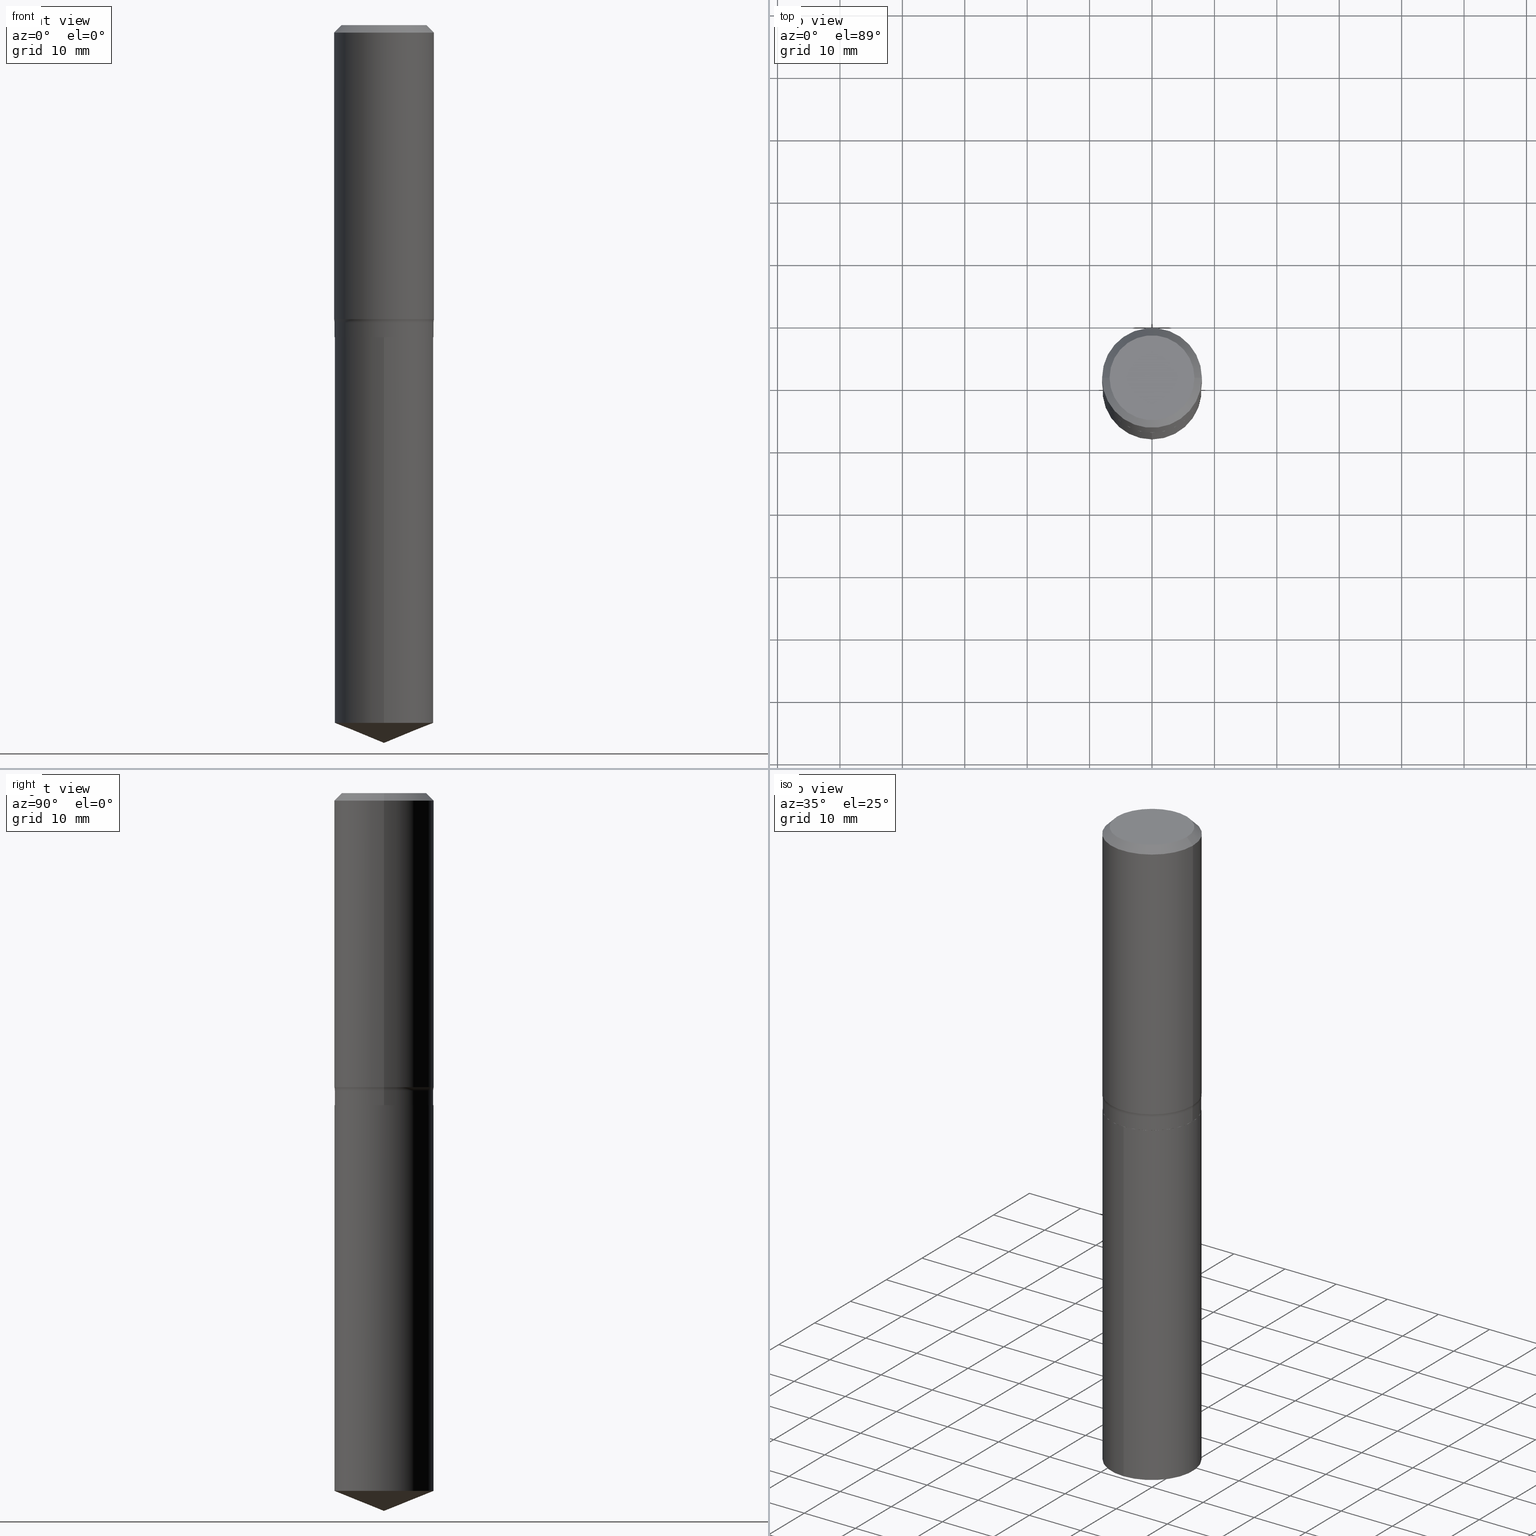
[diagram: canonical four-view strip — front | top / right | iso, engineering-drawing reading convention]
A machine part, canonical four-view strip (front | top / right | iso — engineering-drawing reading convention). The complete STEP part file that produces these views, byte-faithful:
ISO-10303-21;
HEADER;
FILE_DESCRIPTION (( 'STEP AP203' ),
    '1' );
FILE_NAME ('56832.STEP',
    '2024-04-19T14:14:56',
    ( '' ),
    ( '' ),
    'SwSTEP 2.0',
    'SolidWorks 2023',
    '' );
FILE_SCHEMA (( 'CONFIG_CONTROL_DESIGN' ));
ENDSEC;

DATA;
#1 = EDGE_CURVE ( 'NONE', #180, #492, #428, .T. ) ;
#2 = CARTESIAN_POINT ( 'NONE',  ( 4.537088519197371614E-29, -6.477759952362211419E-15, -1.855304188596502035 ) ) ;
#3 = AXIS2_PLACEMENT_3D ( 'NONE', #123, #337, #330 ) ;
#4 = DIMENSIONAL_EXPONENTS ( 1.000000000000000000, 0.000000000000000000, 0.000000000000000000, 0.000000000000000000, 0.000000000000000000, 0.000000000000000000, 0.000000000000000000 ) ;
#5 = DIRECTION ( 'NONE',  ( -2.445468806185136597E-29, 3.491481338843145583E-15, 1.000000000000000000 ) ) ;
#6 = DIRECTION ( 'NONE',  ( 1.000000000000000000, -6.982962677686267499E-15, 0.000000000000000000 ) ) ;
#7 = ADVANCED_FACE ( 'NONE', ( #111 ), #473, .T. ) ;
#8 = ORIENTED_EDGE ( 'NONE', *, *, #460, .F. ) ;
#9 = DIRECTION ( 'NONE',  ( 1.000000000000000000, -6.982962677686268288E-15, 4.883557194083113462E-29 ) ) ;
#10 = ORIENTED_EDGE ( 'NONE', *, *, #335, .T. ) ;
#11 = CONICAL_SURFACE ( 'NONE', #303, 0.3120000000000001106, 0.7853981633974482790 ) ;
#12 = DIRECTION ( 'NONE',  ( -2.445468806185136597E-29, 3.491481338843145583E-15, 1.000000000000000000 ) ) ;
#13 = LINE ( 'NONE', #278, #404 ) ;
#14 = EDGE_LOOP ( 'NONE', ( #275, #375, #218, #128 ) ) ;
#15 = DIRECTION ( 'NONE',  ( 1.000000000000000000, -6.982962677686267499E-15, 4.876236838442819371E-29 ) ) ;
#16 = CARTESIAN_POINT ( 'NONE',  ( 4.813905344975440153E-29, -6.872981015512730130E-15, -1.968499999999999472 ) ) ;
#17 = ORIENTED_EDGE ( 'NONE', *, *, #476, .T. ) ;
#18 = EDGE_CURVE ( 'NONE', #492, #207, #146, .T. ) ;
#19 = LINE ( 'NONE', #435, #423 ) ;
#20 = ORIENTED_EDGE ( 'NONE', *, *, #432, .F. ) ;
#21 = PLANE ( 'NONE',  #203 ) ;
#22 = TOROIDAL_SURFACE ( 'NONE', #36, 0.3905000000000000693, 0.07800000000000002764 ) ;
#23 = ORGANIZATION ( 'UNSPECIFIED', 'UNSPECIFIED', '' ) ;
#24 = ORIENTED_EDGE ( 'NONE', *, *, #185, .T. ) ;
#25 = DIRECTION ( 'NONE',  ( 1.000000000000000000, -6.982962677686265133E-15, 0.000000000000000000 ) ) ;
#26 = DIRECTION ( 'NONE',  ( 1.000000000000000000, -6.982962677686264344E-15, 0.000000000000000000 ) ) ;
#27 = APPROVAL_STATUS ( 'not_yet_approved' ) ;
#28 = DATE_AND_TIME ( #225, #439 ) ;
#29 = CIRCLE ( 'NONE', #270, 0.3125000000000000000 ) ;
#30 = APPROVAL_DATE_TIME ( #447, #145 ) ;
#31 = VERTEX_POINT ( 'NONE', #336 ) ;
#32 = DATE_TIME_ROLE ( 'creation_date' ) ;
#33 = DIRECTION ( 'NONE',  ( -0.7071067811865453523, 2.468850131082234184E-15, -0.7071067811865496822 ) ) ;
#34 = CC_DESIGN_PERSON_AND_ORGANIZATION_ASSIGNMENT ( #313, #152, ( #489 ) ) ;
#35 = LINE ( 'NONE', #351, #261 ) ;
#36 = AXIS2_PLACEMENT_3D ( 'NONE', #287, #401, #9 ) ;
#37 = CARTESIAN_POINT ( 'NONE',  ( 0.3125000000000000000, -2.182175836776958347E-15, 1.523805242436230075E-29 ) ) ;
#38 = EDGE_CURVE ( 'NONE', #477, #122, #236, .T. ) ;
#39 = DIRECTION ( 'NONE',  ( -6.982962677686266711E-15, -1.000000000000000000, 3.491481338843145583E-15 ) ) ;
#40 = DIRECTION ( 'NONE',  ( -6.982962677686265133E-15, -1.000000000000000000, 3.496765431890256920E-15 ) ) ;
#41 = APPROVAL_PERSON_ORGANIZATION ( #107, #145, #227 ) ;
#42 = CIRCLE ( 'NONE', #271, 0.3125000000000000000 ) ;
#43 = PLANE ( 'NONE',  #3 ) ;
#44 = CARTESIAN_POINT ( 'NONE',  ( 0.3120000000000001106, -9.051665370950845469E-15, -1.968499999999999472 ) ) ;
#45 = ORIENTED_EDGE ( 'NONE', *, *, #415, .T. ) ;
#46 = CARTESIAN_POINT ( 'NONE',  ( 4.813905344975440153E-29, -6.872981015512730130E-15, -1.968499999999999472 ) ) ;
#47 = ORIENTED_EDGE ( 'NONE', *, *, #1, .F. ) ;
#48 = CARTESIAN_POINT ( 'NONE',  ( -0.3905000000000000693, -3.770810682786052509E-15, -1.874699999999999589 ) ) ;
#49 = DIRECTION ( 'NONE',  ( -2.445316251726159407E-29, 3.491699805511261497E-15, 1.000000000000000000 ) ) ;
#50 = AXIS2_PLACEMENT_3D ( 'NONE', #452, #106, #273 ) ;
#51 = VERTEX_POINT ( 'NONE', #479 ) ;
#52 = APPLICATION_PROTOCOL_DEFINITION ( 'international standard', 'config_control_design', 1994, #414 ) ;
#53 = PRODUCT_DEFINITION ( 'UNKNOWN', '', #58, #239 ) ;
#54 = DIRECTION ( 'NONE',  ( -0.7071067811865474617, 7.493145998870352582E-15, 0.7071067811865474617 ) ) ;
#55 = FACE_OUTER_BOUND ( 'NONE', #323, .T. ) ;
#56 = DIRECTION ( 'NONE',  ( 2.438088387897960049E-29, -3.491481338843145188E-15, -1.000000000000000000 ) ) ;
#57 = CIRCLE ( 'NONE', #65, 0.3125000000000000000 ) ;
#58 = PRODUCT_DEFINITION_FORMATION_WITH_SPECIFIED_SOURCE ( 'ANY', '', #269, .NOT_KNOWN. ) ;
#59 = DIRECTION ( 'NONE',  ( 1.000000000000000000, -6.982962677686264344E-15, 0.000000000000000000 ) ) ;
#60 = ADVANCED_FACE ( 'NONE', ( #55 ), #136, .T. ) ;
#61 = DATE_AND_TIME ( #309, #229 ) ;
#62 = SECURITY_CLASSIFICATION_LEVEL ( 'unclassified' ) ;
#63 = DIRECTION ( 'NONE',  ( -6.982962677686265133E-15, -1.000000000000000000, 3.496765431890256920E-15 ) ) ;
#64 = DATE_TIME_ROLE ( 'classification_date' ) ;
#65 = AXIS2_PLACEMENT_3D ( 'NONE', #79, #49, #40 ) ;
#66 = ORIENTED_EDGE ( 'NONE', *, *, #432, .T. ) ;
#67 = CIRCLE ( 'NONE', #253, 0.3125000000000000000 ) ;
#68 = ADVANCED_FACE ( 'NONE', ( #151 ), #262, .T. ) ;
#69 = PERSON_AND_ORGANIZATION ( #291, #23 ) ;
#70 = DIRECTION ( 'NONE',  ( -2.445316251726159407E-29, 3.491699805511261497E-15, 1.000000000000000000 ) ) ;
#71 = CARTESIAN_POINT ( 'NONE',  ( -0.3149500000000000077, 2.034337788186991592E-15, -0.04724250000000029120 ) ) ;
#72 = CARTESIAN_POINT ( 'NONE',  ( 4.584520370955274765E-29, -6.545480065929243438E-15, -1.874699999999999589 ) ) ;
#73 = CARTESIAN_POINT ( 'NONE',  ( 4.813905344975440153E-29, -6.872981015512730130E-15, -1.968499999999999472 ) ) ;
#74 = DIRECTION ( 'NONE',  ( -1.000000000000000000, 6.982962677686266711E-15, 0.000000000000000000 ) ) ;
#75 = DIRECTION ( 'NONE',  ( 1.000000000000000000, -6.982962677686268288E-15, 4.883557194083113462E-29 ) ) ;
#76 = LINE ( 'NONE', #77, #156 ) ;
#77 = CARTESIAN_POINT ( 'NONE',  ( 0.3149500000000001743, -2.199284095337290660E-15, 1.535751875536930690E-29 ) ) ;
#78 = FACE_OUTER_BOUND ( 'NONE', #189, .T. ) ;
#79 = CARTESIAN_POINT ( 'NONE',  ( 4.813905344975440153E-29, -6.872981015512730130E-15, -1.968499999999999472 ) ) ;
#80 = VECTOR ( 'NONE', #135, 39.37007874015748143 ) ;
#81 = LOCAL_TIME ( 10, 14, 56.00000000000000000, #412 ) ;
#82 = EDGE_CURVE ( 'NONE', #51, #246, #487, .T. ) ;
#83 = DIRECTION ( 'NONE',  ( 1.000000000000000000, -6.982962677686255667E-15, 0.000000000000000000 ) ) ;
#84 = VERTEX_POINT ( 'NONE', #192 ) ;
#85 = CARTESIAN_POINT ( 'NONE',  ( 2.220446049250420760E-15, 0.3124999999999931166, -1.968500000000000583 ) ) ;
#86 = ORIENTED_EDGE ( 'NONE', *, *, #307, .T. ) ;
#87 = DIRECTION ( 'NONE',  ( -2.445468806185136597E-29, 3.491481338843145583E-15, 1.000000000000000000 ) ) ;
#88 = ADVANCED_FACE ( 'NONE', ( #348 ), #311, .T. ) ;
#89 = AXIS2_PLACEMENT_3D ( 'NONE', #204, #395, #462 ) ;
#90 = AXIS2_PLACEMENT_3D ( 'NONE', #340, #141, #144 ) ;
#91 = CARTESIAN_POINT ( 'NONE',  ( 0.3120000000000001106, -9.051665370950845469E-15, -1.968499999999999472 ) ) ;
#92 = APPROVAL ( #345, 'UNSPECIFIED' ) ;
#93 = ORIENTED_EDGE ( 'NONE', *, *, #265, .F. ) ;
#94 = DIRECTION ( 'NONE',  ( -2.445468806185136597E-29, 3.491481338843145583E-15, 1.000000000000000000 ) ) ;
#95 = CARTESIAN_POINT ( 'NONE',  ( 1.107201973483394939E-28, -1.580815993616041291E-14, -4.527599999999999625 ) ) ;
#96 = EDGE_CURVE ( 'NONE', #477, #84, #35, .T. ) ;
#97 = CARTESIAN_POINT ( 'NONE',  ( 0.3149500000000002853, -8.677044047699501290E-15, -1.855304188596502035 ) ) ;
#98 = DIRECTION ( 'NONE',  ( 1.000000000000000000, -6.982962677686266711E-15, 4.876176775795936353E-29 ) ) ;
#99 = DIRECTION ( 'NONE',  ( 1.000000000000000000, -6.982962677686267499E-15, 4.876236838442819371E-29 ) ) ;
#100 = CIRCLE ( 'NONE', #391, 0.07800000000000002764 ) ;
#101 = DATE_AND_TIME ( #231, #81 ) ;
#102 = DIRECTION ( 'NONE',  ( -6.982962677686265922E-15, -1.000000000000000000, 3.498761904101801525E-15 ) ) ;
#103 = EDGE_CURVE ( 'NONE', #180, #31, #13, .T. ) ;
#104 = APPROVAL_DATE_TIME ( #28, #312 ) ;
#105 = AXIS2_PLACEMENT_3D ( 'NONE', #383, #70, #102 ) ;
#106 = DIRECTION ( 'NONE',  ( -2.445316251726159407E-29, 3.491699805511261497E-15, 1.000000000000000000 ) ) ;
#107 = PERSON_AND_ORGANIZATION ( #291, #23 ) ;
#108 = DIRECTION ( 'NONE',  ( -6.982962677686265133E-15, -1.000000000000000000, 3.496765431890256920E-15 ) ) ;
#109 = DIRECTION ( 'NONE',  ( 6.588037525764796813E-15, 0.9271838545667898668, 0.3746065934159055755 ) ) ;
#110 = EDGE_CURVE ( 'NONE', #255, #158, #57, .T. ) ;
#111 = FACE_OUTER_BOUND ( 'NONE', #162, .T. ) ;
#112 = FACE_OUTER_BOUND ( 'NONE', #14, .T. ) ;
#113 = CLOSED_SHELL ( 'NONE', ( #281, #220, #238, #385, #301, #60, #118, #277, #7, #488, #389, #328 ) ) ;
#114 = AXIS2_PLACEMENT_3D ( 'NONE', #48, #446, #372 ) ;
#115 = CYLINDRICAL_SURFACE ( 'NONE', #89, 0.3149500000000001743 ) ;
#116 = DIRECTION ( 'NONE',  ( -2.445468806185136597E-29, 3.491481338843145583E-15, 1.000000000000000000 ) ) ;
#117 = FACE_OUTER_BOUND ( 'NONE', #143, .T. ) ;
#118 = ADVANCED_FACE ( 'NONE', ( #155 ), #22, .F. ) ;
#119 = VERTEX_POINT ( 'NONE', #120 ) ;
#120 = CARTESIAN_POINT ( 'NONE',  ( 0.3149500000000000077, -2.364230402487588149E-15, -0.04724250000000029120 ) ) ;
#121 = CLOSED_SHELL ( 'NONE', ( #88, #352, #360, #68, #199 ) ) ;
#122 = VERTEX_POINT ( 'NONE', #394 ) ;
#123 = CARTESIAN_POINT ( 'NONE',  ( 4.813905344975440153E-29, -6.872981015512730130E-15, -1.968499999999999472 ) ) ;
#124 = DIRECTION ( 'NONE',  ( 2.445316251726158847E-29, -3.491699805511261891E-15, -1.000000000000000000 ) ) ;
#125 = EDGE_LOOP ( 'NONE', ( #232, #382, #471, #441 ) ) ;
#126 = ORIENTED_EDGE ( 'NONE', *, *, #256, .T. ) ;
#127 = CARTESIAN_POINT ( 'NONE',  ( 0.000000000000000000, 0.000000000000000000, 0.000000000000000000 ) ) ;
#128 = ORIENTED_EDGE ( 'NONE', *, *, #142, .F. ) ;
#129 = AXIS2_PLACEMENT_3D ( 'NONE', #2, #319, #461 ) ;
#130 =( GEOMETRIC_REPRESENTATION_CONTEXT ( 3 ) GLOBAL_UNCERTAINTY_ASSIGNED_CONTEXT ( ( #358 ) ) GLOBAL_UNIT_ASSIGNED_CONTEXT ( ( #178, #327, #434 ) ) REPRESENTATION_CONTEXT ( 'NONE', 'WORKASPACE' ) );
#131 = CARTESIAN_POINT ( 'NONE',  ( -1.001697619218022568E-46, 1.430158722866391086E-32, 4.096137381448112218E-18 ) ) ;
#132 = CARTESIAN_POINT ( 'NONE',  ( -0.3149500000000001743, 2.237854346276436774E-15, -1.549218606675783237E-29 ) ) ;
#133 = ORIENTED_EDGE ( 'NONE', *, *, #370, .T. ) ;
#134 = CARTESIAN_POINT ( 'NONE',  ( -0.3149500000000002853, -4.239905606085773857E-15, -1.855304188596502035 ) ) ;
#135 = DIRECTION ( 'NONE',  ( 0.7071067811865453523, -7.319954787623248157E-15, -0.7071067811865496822 ) ) ;
#136 = CYLINDRICAL_SURFACE ( 'NONE', #282, 0.3125000000000000000 ) ;
#137 = CC_DESIGN_PERSON_AND_ORGANIZATION_ASSIGNMENT ( #69, #339, ( #58 ) ) ;
#138 = FACE_OUTER_BOUND ( 'NONE', #427, .T. ) ;
#139 = AXIS2_PLACEMENT_3D ( 'NONE', #359, #198, #426 ) ;
#140 = APPROVAL_PERSON_ORGANIZATION ( #484, #312, #450 ) ;
#141 = DIRECTION ( 'NONE',  ( -2.445316251726159407E-29, 3.491699805511261497E-15, 1.000000000000000000 ) ) ;
#142 = EDGE_CURVE ( 'NONE', #465, #119, #76, .T. ) ;
#143 = EDGE_LOOP ( 'NONE', ( #205, #405, #380, #329 ) ) ;
#144 = DIRECTION ( 'NONE',  ( -6.982962677686265922E-15, -1.000000000000000000, 3.498761904101801525E-15 ) ) ;
#145 = APPROVAL ( #482, 'UNSPECIFIED' ) ;
#146 = LINE ( 'NONE', #37, #474 ) ;
#147 = COORDINATED_UNIVERSAL_TIME_OFFSET ( 5, 0, .BEHIND. ) ;
#148 = AXIS2_PLACEMENT_3D ( 'NONE', #16, #94, #59 ) ;
#149 = DIRECTION ( 'NONE',  ( -2.445316251726159407E-29, 3.491699805511261497E-15, 1.000000000000000000 ) ) ;
#150 = AXIS2_PLACEMENT_3D ( 'NONE', #208, #12, #15 ) ;
#151 = FACE_OUTER_BOUND ( 'NONE', #254, .T. ) ;
#152 = PERSON_AND_ORGANIZATION_ROLE ( 'classification_officer' ) ;
#153 = ORIENTED_EDGE ( 'NONE', *, *, #265, .T. ) ;
#154 = ORIENTED_EDGE ( 'NONE', *, *, #103, .F. ) ;
#155 = FACE_OUTER_BOUND ( 'NONE', #230, .T. ) ;
#156 = VECTOR ( 'NONE', #283, 39.37007874015748143 ) ;
#157 = AXIS2_PLACEMENT_3D ( 'NONE', #127, #472, #293 ) ;
#158 = VERTEX_POINT ( 'NONE', #367 ) ;
#159 = FACE_OUTER_BOUND ( 'NONE', #125, .T. ) ;
#160 = ORIENTED_EDGE ( 'NONE', *, *, #347, .F. ) ;
#161 = DIRECTION ( 'NONE',  ( 2.445468806185136597E-29, -3.491481338843145583E-15, -1.000000000000000000 ) ) ;
#162 = EDGE_LOOP ( 'NONE', ( #400, #212, #343, #298 ) ) ;
#163 = CARTESIAN_POINT ( 'NONE',  ( 4.584520370955274765E-29, -6.545480065929243438E-15, -1.874699999999999589 ) ) ;
#164 = FACE_OUTER_BOUND ( 'NONE', #369, .T. ) ;
#165 = AXIS2_PLACEMENT_3D ( 'NONE', #46, #124, #206 ) ;
#166 = ORIENTED_EDGE ( 'NONE', *, *, #322, .F. ) ;
#167 = EDGE_CURVE ( 'NONE', #411, #465, #202, .T. ) ;
#168 = CARTESIAN_POINT ( 'NONE',  ( -5.008488096090112840E-47, 7.150793614331955432E-33, 2.048068690724056109E-18 ) ) ;
#169 = DIRECTION ( 'NONE',  ( -1.000000000000000000, 6.982962677686266711E-15, 0.000000000000000000 ) ) ;
#170 = ORIENTED_EDGE ( 'NONE', *, *, #420, .F. ) ;
#171 = CARTESIAN_POINT ( 'NONE',  ( 0.3125000000000000000, -9.053411111620267762E-15, -1.967999999999999527 ) ) ;
#172 = ORIENTED_EDGE ( 'NONE', *, *, #103, .T. ) ;
#173 = DIRECTION ( 'NONE',  ( -2.445468806185136597E-29, 3.491481338843145583E-15, 1.000000000000000000 ) ) ;
#174 = DIRECTION ( 'NONE',  ( -2.445316251726159407E-29, 3.491699805511261891E-15, 1.000000000000000000 ) ) ;
#175 = AXIS2_PLACEMENT_3D ( 'NONE', #424, #5, #249 ) ;
#176 = ORIENTED_EDGE ( 'NONE', *, *, #38, .F. ) ;
#177 = AXIS2_PLACEMENT_3D ( 'NONE', #131, #409, #99 ) ;
#178 =( CONVERSION_BASED_UNIT ( 'INCH', #289 ) LENGTH_UNIT ( ) NAMED_UNIT ( #4 ) );
#179 = CARTESIAN_POINT ( 'NONE',  ( 0.000000000000000000, 0.000000000000000000, 0.000000000000000000 ) ) ;
#180 = VERTEX_POINT ( 'NONE', #279 ) ;
#181 = CARTESIAN_POINT ( 'NONE',  ( 4.584520370955274765E-29, -6.545480065929243438E-15, -1.874699999999999589 ) ) ;
#182 = CARTESIAN_POINT ( 'NONE',  ( 1.155300600762020273E-30, -1.649463071502983032E-16, -0.04724250000000029120 ) ) ;
#183 = APPROVAL_DATE_TIME ( #101, #92 ) ;
#184 = FACE_OUTER_BOUND ( 'NONE', #285, .T. ) ;
#185 = EDGE_CURVE ( 'NONE', #465, #207, #100, .T. ) ;
#186 = CIRCLE ( 'NONE', #129, 0.3149500000000002853 ) ;
#187 = LOCAL_TIME ( 10, 14, 56.00000000000000000, #386 ) ;
#188 = PERSON_AND_ORGANIZATION ( #291, #23 ) ;
#189 = EDGE_LOOP ( 'NONE', ( #166, #93 ) ) ;
#190 = PERSON_AND_ORGANIZATION_ROLE ( 'creator' ) ;
#191 = EDGE_CURVE ( 'NONE', #492, #180, #29, .T. ) ;
#192 = CARTESIAN_POINT ( 'NONE',  ( -2.182175836776850668E-15, -0.3125000000000153766, -4.401341804426513349 ) ) ;
#193 = VECTOR ( 'NONE', #109, 39.37007874015748854 ) ;
#194 = AXIS2_PLACEMENT_3D ( 'NONE', #163, #243, #75 ) ;
#195 = DIRECTION ( 'NONE',  ( -6.474490251793184940E-15, -0.9271838545667873133, 0.3746065934159120703 ) ) ;
#196 = DIRECTION ( 'NONE',  ( 1.000000000000000000, -6.982962677686265133E-15, 0.000000000000000000 ) ) ;
#197 = ORIENTED_EDGE ( 'NONE', *, *, #96, .F. ) ;
#198 = DIRECTION ( 'NONE',  ( -2.445468806185136597E-29, 3.491481338843145583E-15, 1.000000000000000000 ) ) ;
#199 = ADVANCED_FACE ( 'NONE', ( #164 ), #433, .F. ) ;
#200 = CONICAL_SURFACE ( 'NONE', #332, 0.3149500000000000077, 0.7853981633974452814 ) ;
#201 = DIRECTION ( 'NONE',  ( 0.7071067811865474617, -2.468850131082256666E-15, 0.7071067811865474617 ) ) ;
#202 = CIRCLE ( 'NONE', #324, 0.3149500000000002853 ) ;
#203 = AXIS2_PLACEMENT_3D ( 'NONE', #168, #56, #407 ) ;
#204 = CARTESIAN_POINT ( 'NONE',  ( 0.000000000000000000, 0.000000000000000000, 0.000000000000000000 ) ) ;
#205 = ORIENTED_EDGE ( 'NONE', *, *, #322, .T. ) ;
#206 = DIRECTION ( 'NONE',  ( 6.982962677686265922E-15, 1.000000000000000000, -3.491699805511261891E-15 ) ) ;
#207 = VERTEX_POINT ( 'NONE', #247 ) ;
#208 = CARTESIAN_POINT ( 'NONE',  ( -1.001697619218022568E-46, 1.430158722866391086E-32, 4.096137381448112218E-18 ) ) ;
#209 = DIRECTION ( 'NONE',  ( -2.445468806185136597E-29, 3.491481338843145583E-15, 1.000000000000000000 ) ) ;
#210 = AXIS2_PLACEMENT_3D ( 'NONE', #179, #252, #294 ) ;
#211 = AXIS2_PLACEMENT_3D ( 'NONE', #182, #480, #413 ) ;
#212 = ORIENTED_EDGE ( 'NONE', *, *, #466, .F. ) ;
#213 = FACE_OUTER_BOUND ( 'NONE', #422, .T. ) ;
#214 = DIRECTION ( 'NONE',  ( -2.445468806185136877E-29, 3.491481338843145188E-15, 1.000000000000000000 ) ) ;
#215 = ORIENTED_EDGE ( 'NONE', *, *, #377, .F. ) ;
#216 = APPLICATION_CONTEXT ( 'configuration controlled 3d designs of mechanical parts and assemblies' ) ;
#217 = MECHANICAL_CONTEXT ( 'NONE', #414, 'mechanical' ) ;
#218 = ORIENTED_EDGE ( 'NONE', *, *, #335, .F. ) ;
#219 = PERSON_AND_ORGANIZATION ( #291, #23 ) ;
#220 = ADVANCED_FACE ( 'NONE', ( #363 ), #200, .T. ) ;
#221 = AXIS2_PLACEMENT_3D ( 'NONE', #73, #233, #390 ) ;
#222 = ORIENTED_EDGE ( 'NONE', *, *, #226, .T. ) ;
#223 = CC_DESIGN_APPROVAL ( #312, ( #58 ) ) ;
#224 =( LENGTH_UNIT ( ) NAMED_UNIT ( * ) SI_UNIT ( $, .METRE. ) );
#225 = CALENDAR_DATE ( 2024, 19, 4 ) ;
#226 = EDGE_CURVE ( 'NONE', #314, #492, #403, .T. ) ;
#227 = APPROVAL_ROLE ( '' ) ;
#228 = AXIS2_PLACEMENT_3D ( 'NONE', #260, #87, #26 ) ;
#229 = LOCAL_TIME ( 10, 14, 56.00000000000000000, #264 ) ;
#230 = EDGE_LOOP ( 'NONE', ( #20, #436, #24, #393 ) ) ;
#231 = CALENDAR_DATE ( 2024, 19, 4 ) ;
#232 = ORIENTED_EDGE ( 'NONE', *, *, #295, .F. ) ;
#233 = DIRECTION ( 'NONE',  ( -2.445316251726159407E-29, 3.491699805511261497E-15, 1.000000000000000000 ) ) ;
#234 = CARTESIAN_POINT ( 'NONE',  ( 1.076297294721839221E-28, -1.536773427086845792E-14, -4.401341804426514237 ) ) ;
#235 = VECTOR ( 'NONE', #54, 39.37007874015748854 ) ;
#236 = LINE ( 'NONE', #95, #193 ) ;
#237 = DIRECTION ( 'NONE',  ( -6.982962677686265133E-15, -1.000000000000000000, 3.496765431890256920E-15 ) ) ;
#238 = ADVANCED_FACE ( 'NONE', ( #112 ), #464, .T. ) ;
#239 = DESIGN_CONTEXT ( 'detailed design', #216, 'design' ) ;
#240 = DIRECTION ( 'NONE',  ( -2.445316251726159407E-29, 3.491699805511261497E-15, 1.000000000000000000 ) ) ;
#241 = ADVANCED_BREP_SHAPE_REPRESENTATION ( '56832', ( #366, #371, #157 ), #130 ) ;
#242 = CC_DESIGN_DATE_AND_TIME_ASSIGNMENT ( #61, #64, ( #489 ) ) ;
#243 = DIRECTION ( 'NONE',  ( -2.445468806185136597E-29, 3.491481338843145583E-15, 1.000000000000000000 ) ) ;
#244 = CARTESIAN_POINT ( 'NONE',  ( 0.3905000000000000693, -9.272326991565731409E-15, -1.874699999999999589 ) ) ;
#245 = AXIS2_PLACEMENT_3D ( 'NONE', #346, #149, #108 ) ;
#246 = VERTEX_POINT ( 'NONE', #425 ) ;
#247 = CARTESIAN_POINT ( 'NONE',  ( 0.3125000000000000000, -8.727655902706201785E-15, -1.874699999999999589 ) ) ;
#248 = ORIENTED_EDGE ( 'NONE', *, *, #476, .F. ) ;
#249 = DIRECTION ( 'NONE',  ( 1.000000000000000000, -6.982962677686264344E-15, 0.000000000000000000 ) ) ;
#250 = ORIENTED_EDGE ( 'NONE', *, *, #307, .F. ) ;
#251 = LINE ( 'NONE', #299, #235 ) ;
#252 = DIRECTION ( 'NONE',  ( -2.445468806185136597E-29, 3.491481338843145583E-15, 1.000000000000000000 ) ) ;
#253 = AXIS2_PLACEMENT_3D ( 'NONE', #234, #392, #63 ) ;
#254 = EDGE_LOOP ( 'NONE', ( #248, #457, #86, #355 ) ) ;
#255 = VERTEX_POINT ( 'NONE', #85 ) ;
#256 = EDGE_CURVE ( 'NONE', #158, #255, #396, .T. ) ;
#257 = PERSON_AND_ORGANIZATION_ROLE ( 'design_owner' ) ;
#258 = ORIENTED_EDGE ( 'NONE', *, *, #415, .F. ) ;
#259 = CARTESIAN_POINT ( 'NONE',  ( -0.3120000000000001106, -4.653438452767105957E-15, -1.968499999999999472 ) ) ;
#260 = CARTESIAN_POINT ( 'NONE',  ( 4.813905344975440153E-29, -6.872981015512730130E-15, -1.968499999999999472 ) ) ;
#261 = VECTOR ( 'NONE', #195, 39.37007874015748854 ) ;
#262 = CYLINDRICAL_SURFACE ( 'NONE', #50, 0.3125000000000000000 ) ;
#263 = CIRCLE ( 'NONE', #342, 0.3125000000000000000 ) ;
#264 = COORDINATED_UNIVERSAL_TIME_OFFSET ( 5, 0, .BEHIND. ) ;
#265 = EDGE_CURVE ( 'NONE', #408, #314, #453, .T. ) ;
#266 = SHAPE_DEFINITION_REPRESENTATION ( #417, #241 ) ;
#267 = PRODUCT_RELATED_PRODUCT_CATEGORY ( 'detail', '', ( #269 ) ) ;
#268 = DATE_AND_TIME ( #305, #272 ) ;
#269 = PRODUCT ( '56832', '56832', '', ( #217 ) ) ;
#270 = AXIS2_PLACEMENT_3D ( 'NONE', #320, #209, #458 ) ;
#271 = AXIS2_PLACEMENT_3D ( 'NONE', #72, #116, #196 ) ;
#272 = LOCAL_TIME ( 10, 14, 56.00000000000000000, #147 ) ;
#273 = DIRECTION ( 'NONE',  ( -6.982962677686265133E-15, -1.000000000000000000, 3.496765431890256920E-15 ) ) ;
#274 = EDGE_CURVE ( 'NONE', #465, #411, #186, .T. ) ;
#275 = ORIENTED_EDGE ( 'NONE', *, *, #274, .T. ) ;
#276 = CARTESIAN_POINT ( 'NONE',  ( 4.812682610572347912E-29, -6.871235274843308626E-15, -1.967999999999999527 ) ) ;
#277 = ADVANCED_FACE ( 'NONE', ( #159 ), #115, .T. ) ;
#278 = CARTESIAN_POINT ( 'NONE',  ( -0.3125000000000000000, 2.220446049250313081E-15, -1.537167215704658232E-29 ) ) ;
#279 = CARTESIAN_POINT ( 'NONE',  ( -0.3125000000000000000, -4.487911621135963346E-15, -1.967999999999999527 ) ) ;
#280 = CARTESIAN_POINT ( 'NONE',  ( 4.813905344975440153E-29, -6.872981015512730130E-15, -1.968499999999999472 ) ) ;
#281 = ADVANCED_FACE ( 'NONE', ( #117 ), #11, .T. ) ;
#282 = AXIS2_PLACEMENT_3D ( 'NONE', #444, #306, #98 ) ;
#283 = DIRECTION ( 'NONE',  ( -2.445468806185136877E-29, 3.491481338843145188E-15, 1.000000000000000000 ) ) ;
#284 = CIRCLE ( 'NONE', #150, 0.2677074999999999871 ) ;
#285 = EDGE_LOOP ( 'NONE', ( #197, #481, #326 ) ) ;
#286 = CC_DESIGN_PERSON_AND_ORGANIZATION_ASSIGNMENT ( #349, #190, ( #58 ) ) ;
#287 = CARTESIAN_POINT ( 'NONE',  ( 4.584520370955274765E-29, -6.545480065929243438E-15, -1.874699999999999589 ) ) ;
#288 = ORIENTED_EDGE ( 'NONE', *, *, #191, .T. ) ;
#289 = LENGTH_MEASURE_WITH_UNIT ( LENGTH_MEASURE( 0.02539999999999999897 ), #224 );
#290 = CYLINDRICAL_SURFACE ( 'NONE', #210, 0.3125000000000000000 ) ;
#291 = PERSON ( 'UNSPECIFIED', 'UNSPECIFIED', 'UNSPECIFIED', ('UNSPECIFIED'), ('UNSPECIFIED'), ('UNSPECIFIED') ) ;
#292 = EDGE_LOOP ( 'NONE', ( #176, #419, #160 ) ) ;
#293 = DIRECTION ( 'NONE',  ( 1.000000000000000000, 0.000000000000000000, 0.000000000000000000 ) ) ;
#294 = DIRECTION ( 'NONE',  ( 1.000000000000000000, -6.982962677686266711E-15, 4.876176775795936353E-29 ) ) ;
#295 = EDGE_CURVE ( 'NONE', #411, #246, #475, .T. ) ;
#296 = CIRCLE ( 'NONE', #211, 0.3149500000000000077 ) ;
#297 = ORIENTED_EDGE ( 'NONE', *, *, #420, .T. ) ;
#298 = ORIENTED_EDGE ( 'NONE', *, *, #442, .T. ) ;
#299 = CARTESIAN_POINT ( 'NONE',  ( -0.3120000000000001106, -4.656087679941216369E-15, -1.968499999999999472 ) ) ;
#300 = DIRECTION ( 'NONE',  ( 2.445468806185136597E-29, -3.491481338843145583E-15, -1.000000000000000000 ) ) ;
#301 = ADVANCED_FACE ( 'NONE', ( #374 ), #290, .T. ) ;
#302 = DIRECTION ( 'NONE',  ( -2.445468806185136597E-29, 3.491481338843145583E-15, 1.000000000000000000 ) ) ;
#303 = AXIS2_PLACEMENT_3D ( 'NONE', #280, #470, #406 ) ;
#304 = PERSON_AND_ORGANIZATION_ROLE ( 'creator' ) ;
#305 = CALENDAR_DATE ( 2024, 19, 4 ) ;
#306 = DIRECTION ( 'NONE',  ( -2.445468806185136597E-29, 3.491481338843145583E-15, 1.000000000000000000 ) ) ;
#307 = EDGE_CURVE ( 'NONE', #84, #158, #19, .T. ) ;
#308 = VECTOR ( 'NONE', #214, 39.37007874015748143 ) ;
#309 = CALENDAR_DATE ( 2024, 19, 4 ) ;
#310 = APPROVAL_PERSON_ORGANIZATION ( #188, #92, #486 ) ;
#311 = CYLINDRICAL_SURFACE ( 'NONE', #221, 0.3125000000000000000 ) ;
#312 = APPROVAL ( #27, 'UNSPECIFIED' ) ;
#313 = PERSON_AND_ORGANIZATION ( #291, #23 ) ;
#314 = VERTEX_POINT ( 'NONE', #91 ) ;
#315 = EDGE_CURVE ( 'NONE', #490, #119, #381, .T. ) ;
#316 = EDGE_LOOP ( 'NONE', ( #133, #17, #364, #250 ) ) ;
#317 = AXIS2_PLACEMENT_3D ( 'NONE', #354, #240, #237 ) ;
#318 = CIRCLE ( 'NONE', #114, 0.07800000000000002764 ) ;
#319 = DIRECTION ( 'NONE',  ( -2.445468806185136597E-29, 3.491481338843145583E-15, 1.000000000000000000 ) ) ;
#320 = CARTESIAN_POINT ( 'NONE',  ( 4.812682610572347912E-29, -6.871235274843308626E-15, -1.967999999999999527 ) ) ;
#321 = ORIENTED_EDGE ( 'NONE', *, *, #185, .F. ) ;
#322 = EDGE_CURVE ( 'NONE', #314, #408, #438, .T. ) ;
#323 = EDGE_LOOP ( 'NONE', ( #154, #469, #463, #170 ) ) ;
#324 = AXIS2_PLACEMENT_3D ( 'NONE', #468, #430, #6 ) ;
#325 = CARTESIAN_POINT ( 'NONE',  ( 0.2677074999999999871, -2.081133459643432233E-15, 4.096137381461924987E-18 ) ) ;
#326 = ORIENTED_EDGE ( 'NONE', *, *, #370, .F. ) ;
#327 =( NAMED_UNIT ( * ) PLANE_ANGLE_UNIT ( ) SI_UNIT ( $, .RADIAN. ) );
#328 = ADVANCED_FACE ( 'NONE', ( #138 ), #378, .T. ) ;
#329 = ORIENTED_EDGE ( 'NONE', *, *, #226, .F. ) ;
#330 = DIRECTION ( 'NONE',  ( 1.000000000000000000, -6.982962677686265922E-15, 4.876176775795935793E-29 ) ) ;
#331 = CARTESIAN_POINT ( 'NONE',  ( 0.3149500000000000077, -2.325660151548442036E-15, -0.04724250000000029120 ) ) ;
#332 = AXIS2_PLACEMENT_3D ( 'NONE', #399, #161, #169 ) ;
#333 = AXIS2_PLACEMENT_3D ( 'NONE', #437, #302, #440 ) ;
#334 = ORIENTED_EDGE ( 'NONE', *, *, #466, .T. ) ;
#335 = EDGE_CURVE ( 'NONE', #119, #246, #296, .T. ) ;
#336 = CARTESIAN_POINT ( 'NONE',  ( -0.3125000000000000000, -4.487911621135963346E-15, -1.874699999999999589 ) ) ;
#337 = DIRECTION ( 'NONE',  ( -2.438088387897960049E-29, 3.491481338843145188E-15, 1.000000000000000000 ) ) ;
#338 = ORIENTED_EDGE ( 'NONE', *, *, #315, .T. ) ;
#339 = PERSON_AND_ORGANIZATION_ROLE ( 'design_supplier' ) ;
#340 = CARTESIAN_POINT ( 'NONE',  ( -8.520057921027778746E-28, 1.216599062921743266E-13, 34.84247874015748181 ) ) ;
#341 = VECTOR ( 'NONE', #33, 39.37007874015748143 ) ;
#342 = AXIS2_PLACEMENT_3D ( 'NONE', #181, #173, #25 ) ;
#343 = ORIENTED_EDGE ( 'NONE', *, *, #82, .T. ) ;
#344 = ORIENTED_EDGE ( 'NONE', *, *, #110, .T. ) ;
#345 = APPROVAL_STATUS ( 'not_yet_approved' ) ;
#346 = CARTESIAN_POINT ( 'NONE',  ( 1.076297294721839221E-28, -1.536773427086845792E-14, -4.401341804426514237 ) ) ;
#347 = EDGE_CURVE ( 'NONE', #122, #84, #67, .T. ) ;
#348 = FACE_OUTER_BOUND ( 'NONE', #316, .T. ) ;
#349 = PERSON_AND_ORGANIZATION ( #291, #23 ) ;
#350 = CC_DESIGN_SECURITY_CLASSIFICATION ( #489, ( #58 ) ) ;
#351 = CARTESIAN_POINT ( 'NONE',  ( 1.107141386131535772E-28, -1.580902003943278441E-14, -4.527599999999999625 ) ) ;
#352 = ADVANCED_FACE ( 'NONE', ( #184 ), #379, .T. ) ;
#353 = DIRECTION ( 'NONE',  ( -2.445468806185136877E-29, 3.491481338843145188E-15, 1.000000000000000000 ) ) ;
#354 = CARTESIAN_POINT ( 'NONE',  ( 4.813905344975440153E-29, -6.872981015512730130E-15, -1.968499999999999472 ) ) ;
#355 = ORIENTED_EDGE ( 'NONE', *, *, #110, .F. ) ;
#356 = VECTOR ( 'NONE', #201, 39.37007874015748854 ) ;
#357 = CIRCLE ( 'NONE', #245, 0.3125000000000000000 ) ;
#358 = UNCERTAINTY_MEASURE_WITH_UNIT (LENGTH_MEASURE( 1.000000000000000082E-05 ), #178, 'distance_accuracy_value', 'NONE');
#359 = CARTESIAN_POINT ( 'NONE',  ( 0.000000000000000000, 0.000000000000000000, 0.000000000000000000 ) ) ;
#360 = ADVANCED_FACE ( 'NONE', ( #448 ), #397, .T. ) ;
#361 = DIRECTION ( 'NONE',  ( -2.445468806185136877E-29, 3.491481338843145188E-15, 1.000000000000000000 ) ) ;
#362 = ORIENTED_EDGE ( 'NONE', *, *, #18, .F. ) ;
#363 = FACE_OUTER_BOUND ( 'NONE', #431, .T. ) ;
#364 = ORIENTED_EDGE ( 'NONE', *, *, #256, .F. ) ;
#365 = DIRECTION ( 'NONE',  ( -2.445316251726159407E-29, 3.491699805511261891E-15, 1.000000000000000000 ) ) ;
#366 = MANIFOLD_SOLID_BREP ( 'Body-Move/Copy2[1]', #121 ) ;
#367 = CARTESIAN_POINT ( 'NONE',  ( -2.182175836776910227E-15, -0.3125000000000069389, -1.968499999999998362 ) ) ;
#368 = TOROIDAL_SURFACE ( 'NONE', #194, 0.3905000000000000693, 0.07800000000000002764 ) ;
#369 = EDGE_LOOP ( 'NONE', ( #126, #344 ) ) ;
#370 = EDGE_CURVE ( 'NONE', #84, #122, #357, .T. ) ;
#371 = MANIFOLD_SOLID_BREP ( 'Body-Move/Copy2[2]', #113 ) ;
#372 = DIRECTION ( 'NONE',  ( -1.000000000000000000, 7.105427357601001859E-15, 0.000000000000000000 ) ) ;
#373 = ORIENTED_EDGE ( 'NONE', *, *, #82, .F. ) ;
#374 = FACE_OUTER_BOUND ( 'NONE', #421, .T. ) ;
#375 = ORIENTED_EDGE ( 'NONE', *, *, #295, .T. ) ;
#376 = LINE ( 'NONE', #402, #384 ) ;
#377 = EDGE_CURVE ( 'NONE', #207, #31, #42, .T. ) ;
#378 = CONICAL_SURFACE ( 'NONE', #148, 0.3120000000000001106, 0.7853981633974482790 ) ;
#379 = CONICAL_SURFACE ( 'NONE', #90, 97.44436430772914548, 1.186823891356147520 ) ;
#380 = ORIENTED_EDGE ( 'NONE', *, *, #191, .F. ) ;
#381 = LINE ( 'NONE', #331, #80 ) ;
#382 = ORIENTED_EDGE ( 'NONE', *, *, #167, .T. ) ;
#383 = CARTESIAN_POINT ( 'NONE',  ( -8.520057921027778746E-28, 1.216599062921743266E-13, 34.84247874015748181 ) ) ;
#384 = VECTOR ( 'NONE', #365, 39.37007874015748143 ) ;
#385 = ADVANCED_FACE ( 'NONE', ( #398 ), #368, .F. ) ;
#386 = COORDINATED_UNIVERSAL_TIME_OFFSET ( 5, 0, .BEHIND. ) ;
#387 = ORIENTED_EDGE ( 'NONE', *, *, #167, .F. ) ;
#388 = DIRECTION ( 'NONE',  ( 1.000000000000000000, -6.982962677686269077E-15, 0.000000000000000000 ) ) ;
#389 = ADVANCED_FACE ( 'NONE', ( #78 ), #43, .F. ) ;
#390 = DIRECTION ( 'NONE',  ( -6.982962677686265133E-15, -1.000000000000000000, 3.496765431890256920E-15 ) ) ;
#391 = AXIS2_PLACEMENT_3D ( 'NONE', #244, #39, #83 ) ;
#392 = DIRECTION ( 'NONE',  ( -2.445316251726159407E-29, 3.491699805511261497E-15, 1.000000000000000000 ) ) ;
#393 = ORIENTED_EDGE ( 'NONE', *, *, #377, .T. ) ;
#394 = CARTESIAN_POINT ( 'NONE',  ( 2.220446049250420366E-15, 0.3124999999999847344, -4.401341804426515125 ) ) ;
#395 = DIRECTION ( 'NONE',  ( -2.445468806185136597E-29, 3.491481338843145583E-15, 1.000000000000000000 ) ) ;
#396 = CIRCLE ( 'NONE', #317, 0.3125000000000000000 ) ;
#397 = CONICAL_SURFACE ( 'NONE', #105, 97.44436430772914548, 1.186823891356147520 ) ;
#398 = FACE_OUTER_BOUND ( 'NONE', #449, .T. ) ;
#399 = CARTESIAN_POINT ( 'NONE',  ( 1.155300600762020273E-30, -1.649463071502983032E-16, -0.04724250000000029120 ) ) ;
#400 = ORIENTED_EDGE ( 'NONE', *, *, #315, .F. ) ;
#401 = DIRECTION ( 'NONE',  ( -2.445468806185136597E-29, 3.491481338843145583E-15, 1.000000000000000000 ) ) ;
#402 = CARTESIAN_POINT ( 'NONE',  ( 2.220446049250360807E-15, 0.3124999999999931166, -1.968500000000000583 ) ) ;
#403 = LINE ( 'NONE', #44, #356 ) ;
#404 = VECTOR ( 'NONE', #361, 39.37007874015748143 ) ;
#405 = ORIENTED_EDGE ( 'NONE', *, *, #460, .T. ) ;
#406 = DIRECTION ( 'NONE',  ( 1.000000000000000000, -6.982962677686264344E-15, 0.000000000000000000 ) ) ;
#407 = DIRECTION ( 'NONE',  ( -1.000000000000000000, 6.982962677686265922E-15, -4.876176775795935793E-29 ) ) ;
#408 = VERTEX_POINT ( 'NONE', #259 ) ;
#409 = DIRECTION ( 'NONE',  ( -2.445468806185136597E-29, 3.491481338843145583E-15, 1.000000000000000000 ) ) ;
#410 = AXIS2_PLACEMENT_3D ( 'NONE', #455, #300, #74 ) ;
#411 = VERTEX_POINT ( 'NONE', #134 ) ;
#412 = COORDINATED_UNIVERSAL_TIME_OFFSET ( 5, 0, .BEHIND. ) ;
#413 = DIRECTION ( 'NONE',  ( 1.000000000000000000, -6.982962677686266711E-15, 0.000000000000000000 ) ) ;
#414 = APPLICATION_CONTEXT ( 'configuration controlled 3d designs of mechanical parts and assemblies' ) ;
#415 = EDGE_CURVE ( 'NONE', #490, #51, #467, .T. ) ;
#416 = COORDINATED_UNIVERSAL_TIME_OFFSET ( 5, 0, .BEHIND. ) ;
#417 = PRODUCT_DEFINITION_SHAPE ( 'NONE', 'NONE',  #53 ) ;
#418 = CIRCLE ( 'NONE', #333, 0.3149500000000000077 ) ;
#419 = ORIENTED_EDGE ( 'NONE', *, *, #96, .T. ) ;
#420 = EDGE_CURVE ( 'NONE', #31, #207, #263, .T. ) ;
#421 = EDGE_LOOP ( 'NONE', ( #288, #172, #215, #362 ) ) ;
#422 = EDGE_LOOP ( 'NONE', ( #334, #45 ) ) ;
#423 = VECTOR ( 'NONE', #174, 39.37007874015748143 ) ;
#424 = CARTESIAN_POINT ( 'NONE',  ( 4.813905344975440153E-29, -6.872981015512730130E-15, -1.968499999999999472 ) ) ;
#425 = CARTESIAN_POINT ( 'NONE',  ( -0.3149500000000000077, -1.083498783479817878E-15, -0.04724250000000029120 ) ) ;
#426 = DIRECTION ( 'NONE',  ( 1.000000000000000000, -6.982962677686265922E-15, 4.876176775795935232E-29 ) ) ;
#427 = EDGE_LOOP ( 'NONE', ( #8, #153, #222, #47 ) ) ;
#428 = CIRCLE ( 'NONE', #483, 0.3125000000000000000 ) ;
#429 = CC_DESIGN_APPROVAL ( #92, ( #53 ) ) ;
#430 = DIRECTION ( 'NONE',  ( -2.445468806185136597E-29, 3.491481338843145583E-15, 1.000000000000000000 ) ) ;
#431 = EDGE_LOOP ( 'NONE', ( #258, #338, #10, #373 ) ) ;
#432 = EDGE_CURVE ( 'NONE', #411, #31, #318, .T. ) ;
#433 = PLANE ( 'NONE',  #165 ) ;
#434 =( NAMED_UNIT ( * ) SI_UNIT ( $, .STERADIAN. ) SOLID_ANGLE_UNIT ( ) );
#435 = CARTESIAN_POINT ( 'NONE',  ( -2.182175836776910227E-15, -0.3125000000000069389, -1.968499999999998362 ) ) ;
#436 = ORIENTED_EDGE ( 'NONE', *, *, #274, .F. ) ;
#437 = CARTESIAN_POINT ( 'NONE',  ( 1.155300600762020273E-30, -1.649463071502983032E-16, -0.04724250000000029120 ) ) ;
#438 = CIRCLE ( 'NONE', #228, 0.3120000000000001106 ) ;
#439 = LOCAL_TIME ( 10, 14, 56.00000000000000000, #416 ) ;
#440 = DIRECTION ( 'NONE',  ( 1.000000000000000000, -6.982962677686266711E-15, 0.000000000000000000 ) ) ;
#441 = ORIENTED_EDGE ( 'NONE', *, *, #442, .F. ) ;
#442 = EDGE_CURVE ( 'NONE', #246, #119, #418, .T. ) ;
#443 = CARTESIAN_POINT ( 'NONE',  ( 1.107141386131535772E-28, -1.580902003943278441E-14, -4.527599999999999625 ) ) ;
#444 = CARTESIAN_POINT ( 'NONE',  ( 0.000000000000000000, 0.000000000000000000, 0.000000000000000000 ) ) ;
#445 = CC_DESIGN_PERSON_AND_ORGANIZATION_ASSIGNMENT ( #454, #304, ( #53 ) ) ;
#446 = DIRECTION ( 'NONE',  ( 7.105427357601001859E-15, 1.000000000000000000, -3.491481338843145583E-15 ) ) ;
#447 = DATE_AND_TIME ( #456, #187 ) ;
#448 = FACE_OUTER_BOUND ( 'NONE', #292, .T. ) ;
#449 = EDGE_LOOP ( 'NONE', ( #387, #66, #297, #321 ) ) ;
#450 = APPROVAL_ROLE ( '' ) ;
#451 = CC_DESIGN_PERSON_AND_ORGANIZATION_ASSIGNMENT ( #219, #257, ( #269 ) ) ;
#452 = CARTESIAN_POINT ( 'NONE',  ( 4.813905344975440153E-29, -6.872981015512730130E-15, -1.968499999999999472 ) ) ;
#453 = CIRCLE ( 'NONE', #175, 0.3120000000000001106 ) ;
#454 = PERSON_AND_ORGANIZATION ( #291, #23 ) ;
#455 = CARTESIAN_POINT ( 'NONE',  ( 1.155300600762020273E-30, -1.649463071502983032E-16, -0.04724250000000029120 ) ) ;
#456 = CALENDAR_DATE ( 2024, 19, 4 ) ;
#457 = ORIENTED_EDGE ( 'NONE', *, *, #347, .T. ) ;
#458 = DIRECTION ( 'NONE',  ( 1.000000000000000000, -6.982962677686269077E-15, 0.000000000000000000 ) ) ;
#459 = CC_DESIGN_APPROVAL ( #145, ( #489 ) ) ;
#460 = EDGE_CURVE ( 'NONE', #408, #180, #251, .T. ) ;
#461 = DIRECTION ( 'NONE',  ( 1.000000000000000000, -6.982962677686267499E-15, 0.000000000000000000 ) ) ;
#462 = DIRECTION ( 'NONE',  ( 1.000000000000000000, -6.982962677686265922E-15, 4.876176775795935232E-29 ) ) ;
#463 = ORIENTED_EDGE ( 'NONE', *, *, #18, .T. ) ;
#464 = CYLINDRICAL_SURFACE ( 'NONE', #139, 0.3149500000000001743 ) ;
#465 = VERTEX_POINT ( 'NONE', #97 ) ;
#466 = EDGE_CURVE ( 'NONE', #51, #490, #284, .T. ) ;
#467 = CIRCLE ( 'NONE', #177, 0.2677074999999999871 ) ;
#468 = CARTESIAN_POINT ( 'NONE',  ( 4.537088519197371614E-29, -6.477759952362211419E-15, -1.855304188596502035 ) ) ;
#469 = ORIENTED_EDGE ( 'NONE', *, *, #1, .T. ) ;
#470 = DIRECTION ( 'NONE',  ( -2.445468806185136597E-29, 3.491481338843145583E-15, 1.000000000000000000 ) ) ;
#471 = ORIENTED_EDGE ( 'NONE', *, *, #142, .T. ) ;
#472 = DIRECTION ( 'NONE',  ( 0.000000000000000000, 0.000000000000000000, 1.000000000000000000 ) ) ;
#473 = CONICAL_SURFACE ( 'NONE', #410, 0.3149500000000000077, 0.7853981633974452814 ) ;
#474 = VECTOR ( 'NONE', #353, 39.37007874015748143 ) ;
#475 = LINE ( 'NONE', #132, #308 ) ;
#476 = EDGE_CURVE ( 'NONE', #122, #255, #376, .T. ) ;
#477 = VERTEX_POINT ( 'NONE', #443 ) ;
#478 = APPLICATION_PROTOCOL_DEFINITION ( 'international standard', 'config_control_design', 1994, #216 ) ;
#479 = CARTESIAN_POINT ( 'NONE',  ( -0.2677074999999999871, 1.951864634611843833E-15, 4.096137381434750116E-18 ) ) ;
#480 = DIRECTION ( 'NONE',  ( -2.445468806185136597E-29, 3.491481338843145583E-15, 1.000000000000000000 ) ) ;
#481 = ORIENTED_EDGE ( 'NONE', *, *, #38, .T. ) ;
#482 = APPROVAL_STATUS ( 'not_yet_approved' ) ;
#483 = AXIS2_PLACEMENT_3D ( 'NONE', #276, #485, #388 ) ;
#484 = PERSON_AND_ORGANIZATION ( #291, #23 ) ;
#485 = DIRECTION ( 'NONE',  ( -2.445468806185136597E-29, 3.491481338843145583E-15, 1.000000000000000000 ) ) ;
#486 = APPROVAL_ROLE ( '' ) ;
#487 = LINE ( 'NONE', #71, #341 ) ;
#488 = ADVANCED_FACE ( 'NONE', ( #213 ), #21, .F. ) ;
#489 = SECURITY_CLASSIFICATION ( '', '', #62 ) ;
#490 = VERTEX_POINT ( 'NONE', #325 ) ;
#491 = CC_DESIGN_DATE_AND_TIME_ASSIGNMENT ( #268, #32, ( #53 ) ) ;
#492 = VERTEX_POINT ( 'NONE', #171 ) ;
ENDSEC;
END-ISO-10303-21;
